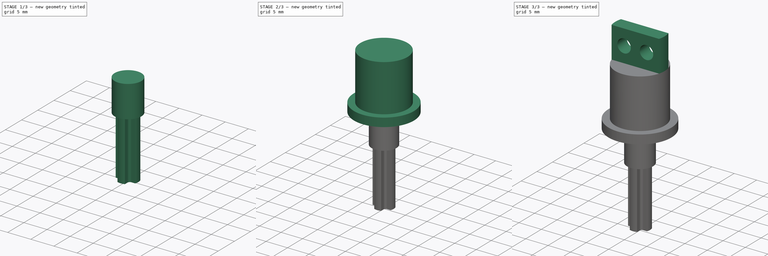
[diagram: build sequence overview — one tinted view per stage of 3, left to right]
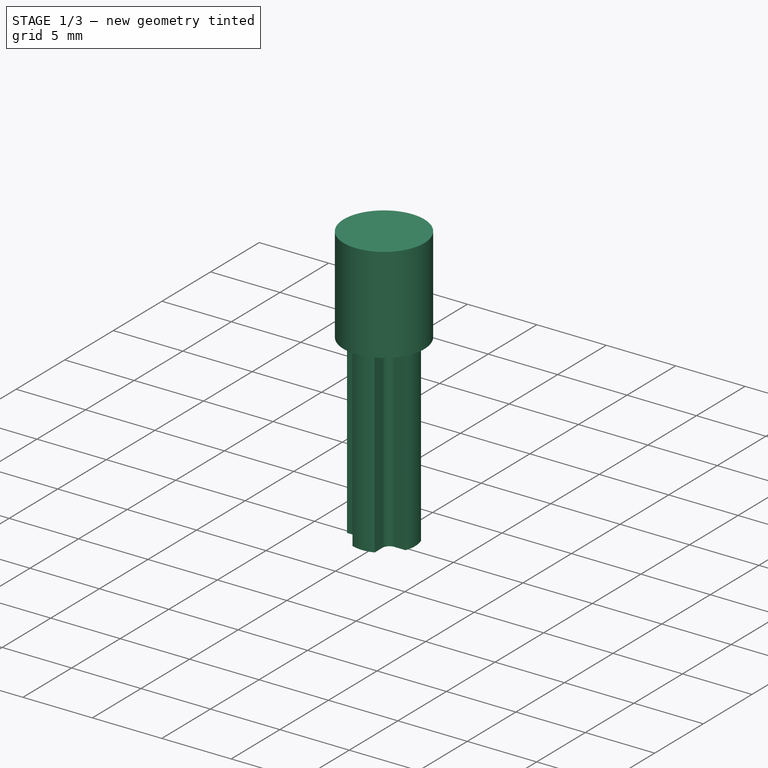
[diagram: stage 1 of 3 — iso view after this stage's code; geometry added in this stage tinted green]
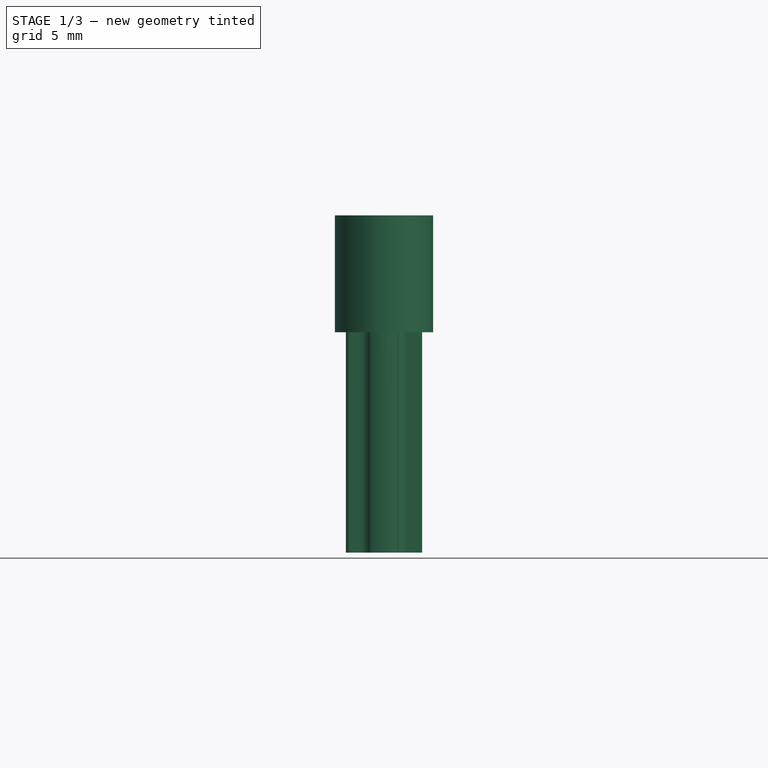
[diagram: stage 1 of 3 — front view after this stage's code; geometry added in this stage tinted green]
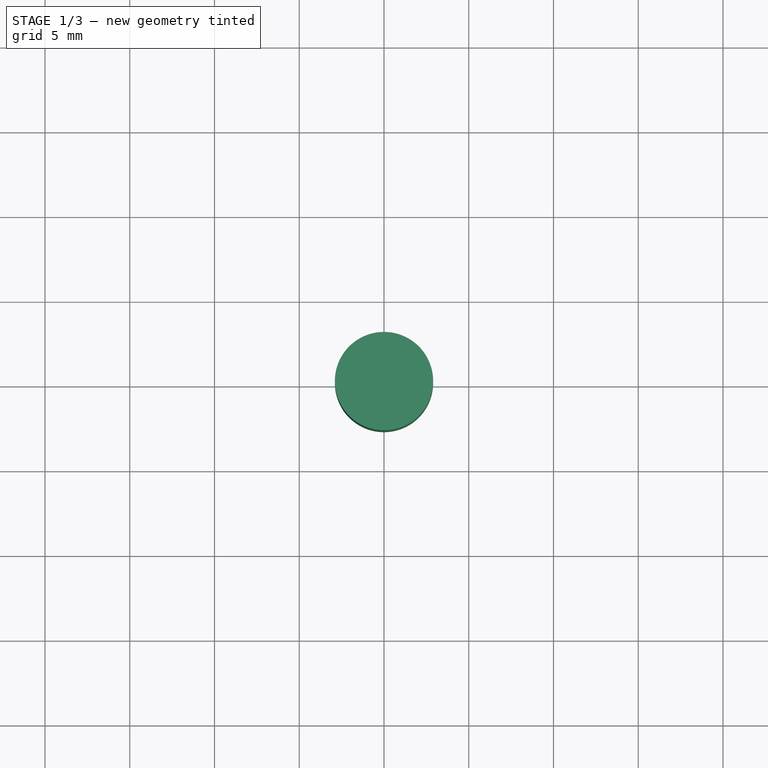
[diagram: stage 1 of 3 — top view after this stage's code; geometry added in this stage tinted green]
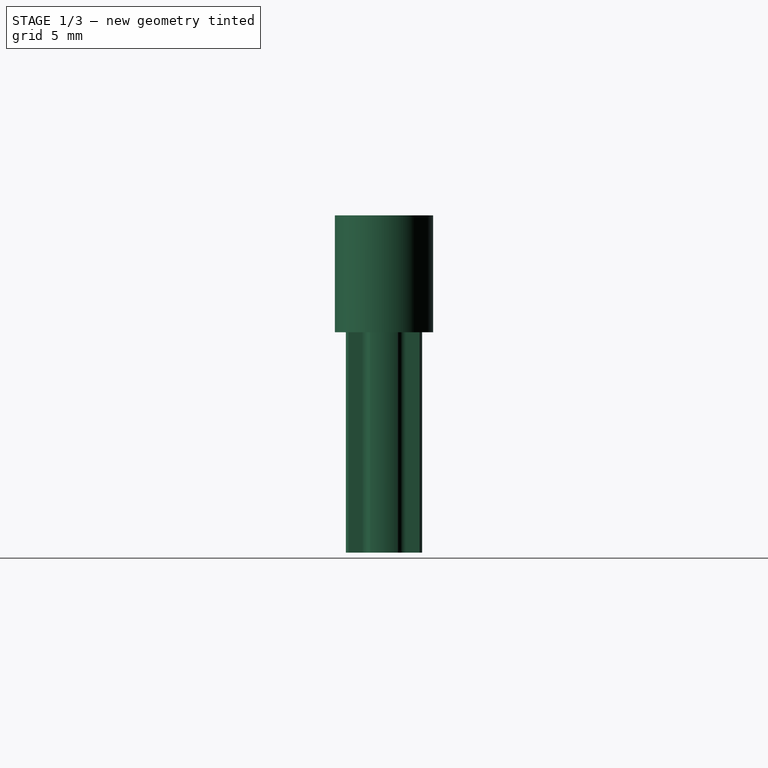
[diagram: stage 1 of 3 — right view after this stage's code; geometry added in this stage tinted green]
FCSTD DOCUMENT  (FreeCAD 1.0R39109 (Git))
Label: BackWheelAxle
License: All rights reserved
LicenseURL: https://en.wikipedia.org/wiki/All_rights_reserved
objects: Sketcher::SketchObject×6, PartDesign::Pad×5, PartDesign::Pocket×1, PartDesign::Body×1, App::Part×1
note: 31 computed .brp shape members not serialized (recipe doc carries the construction recipe); baked Part::Feature solids carry a one-line shape summary decoded from their .brp

FEATURE [Sketcher::SketchObject] Sketch
  ArcFitTolerance = 1e-06
  AttachmentSupport = -> [XY_Plane001]
  FullyConstrained = true
  MakeInternals = false
  MapMode = 5
  sketch-geometry (16):
    g0: ArcOfCircle CenterX=-1.3 CenterY=-1.3 CenterZ=0 NormalX=0 NormalY=0 NormalZ=1 AngleXU=0 Radius=0.5 StartAngle=0 EndAngle=1.5708
    g1: ArcOfCircle CenterX=1.3 CenterY=-1.3 CenterZ=0 NormalX=0 NormalY=0 NormalZ=1 AngleXU=0 Radius=0.5 StartAngle=1.5708 EndAngle=3.14159
    g2: ArcOfCircle CenterX=-1.3 CenterY=1.3 CenterZ=0 NormalX=0 NormalY=0 NormalZ=1 AngleXU=0 Radius=0.5 StartAngle=4.71239 EndAngle=6.28319
    g3: ArcOfCircle CenterX=1.3 CenterY=1.3 CenterZ=0 NormalX=0 NormalY=0 NormalZ=1 AngleXU=0 Radius=0.5 StartAngle=3.14159 EndAngle=4.71239
    g4: LineSegment StartX=-0.8 StartY=2.10297 StartZ=0 EndX=-0.8 EndY=1.3 EndZ=0
    g5: LineSegment StartX=-1.3 StartY=0.8 StartZ=0 EndX=-2.10297 EndY=0.8 EndZ=0
    g6: LineSegment StartX=-2.10297 StartY=-0.8 StartZ=0 EndX=-1.3 EndY=-0.8 EndZ=0
    g7: LineSegment StartX=-0.8 StartY=-1.3 StartZ=0 EndX=-0.8 EndY=-2.10297 EndZ=0
    g8: LineSegment StartX=0.8 StartY=-2.10297 StartZ=0 EndX=0.8 EndY=-1.3 EndZ=0
    g9: LineSegment StartX=1.3 StartY=-0.8 StartZ=0 EndX=2.10297 EndY=-0.8 EndZ=0
    g10: LineSegment StartX=2.10297 StartY=0.8 StartZ=0 EndX=1.3 EndY=0.8 EndZ=0
    g11: LineSegment StartX=0.8 StartY=1.3 StartZ=0 EndX=0.8 EndY=2.10297 EndZ=0
    g12: ArcOfCircle CenterX=0 CenterY=0 CenterZ=0 NormalX=0 NormalY=0 NormalZ=1 AngleXU=0 Radius=2.25 StartAngle=1.20729 EndAngle=1.9343
    g13: ArcOfCircle CenterX=0 CenterY=0 CenterZ=0 NormalX=0 NormalY=0 NormalZ=1 AngleXU=0 Radius=2.25 StartAngle=5.91968 EndAngle=6.64669
    g14: ArcOfCircle CenterX=0 CenterY=0 CenterZ=0 NormalX=0 NormalY=0 NormalZ=1 AngleXU=0 Radius=2.25 StartAngle=4.34888 EndAngle=5.0759
    g15: ArcOfCircle CenterX=0 CenterY=0 CenterZ=0 NormalX=0 NormalY=0 NormalZ=1 AngleXU=0 Radius=2.25 StartAngle=2.77808 EndAngle=3.5051
  constraints (44):
    c: Vertical(g4)
    c: Vertical(g11)
    c: Vertical(g7)
    c: Vertical(g8)
    c: Horizontal(g5)
    c: Horizontal(g10)
    c: Horizontal(g9)
    c: Horizontal(g6)
    c: Tangent(g5,g2) = 1.5708
    c: Tangent(g4,g2) = 1.5708
    c: Tangent(g11,g3) = 1.5708
    c: Tangent(g10,g3) = 1.5708
    c: Tangent(g6,g0) = 1.5708
    c: Tangent(g7,g0) = 1.5708
    c: Tangent(g8,g1) = 1.5708
    c: Tangent(g9,g1) = 1.5708
    c: Radius(g2) = 0.5
    c: Equal(g2,g3)
    c: Equal(g2,g1)
    c: Equal(g2,g0)
    c: Coincident(g12,g-1)
    c: Coincident(g12,g4)
    c: Coincident(g12,g11)
    c: Coincident(g13,g12)
    c: Coincident(g13,g10)
    c: Coincident(g13,g9)
    c: Coincident(g14,g12)
    c: Coincident(g14,g8)
    c: Coincident(g14,g7)
    c: Coincident(g15,g12)
    c: Coincident(g15,g6)
    c: Coincident(g15,g5)
    c: Diameter(g12) = 4.5
    c: Equal(g12,g13)
    c: Equal(g12,g14)
    c: Equal(g12,g15)
    c: Equal(g4,g11)
    c: Equal(g4,g8)
    c: Equal(g4,g7)
    c: Equal(g5,g10)
    c: Equal(g5,g6)
    c: Equal(g5,g9)
    c: DistanceY(g6,g5) = 1.6
    c: DistanceX(g4,g11) = 1.6
FEATURE [PartDesign::Pad] Pad
  Direction = (0,0,1)
  Length = 13
  Length2 = 10
  Profile = -> Sketch
  ReferenceAxis = -> Sketch [N_Axis]
  Refine = true
  Suppressed = false
  Type = 0
FEATURE [Sketcher::SketchObject] Sketch001
  ArcFitTolerance = 1e-06
  AttachmentSupport = -> [Pad]
  FullyConstrained = true
  MakeInternals = false
  MapMode = 5
  Placement = pos=(0,0,13) rot=(0,0,1;0rad)
  sketch-geometry (1):
    g0: Circle CenterX=0 CenterY=0 CenterZ=0 NormalX=0 NormalY=0 NormalZ=1 AngleXU=0 Radius=2.9
  constraints (2):
    c: Diameter(g0) = 5.8
    c: Coincident(g0,g-1)
FEATURE [PartDesign::Pad] Pad001
  BaseFeature = -> Pad
  Direction = (0,0,1)
  Length = 6.9
  Length2 = 10
  Profile = -> Sketch001
  ReferenceAxis = -> Sketch001 [N_Axis]
  Refine = true
  Suppressed = false
  Type = 0
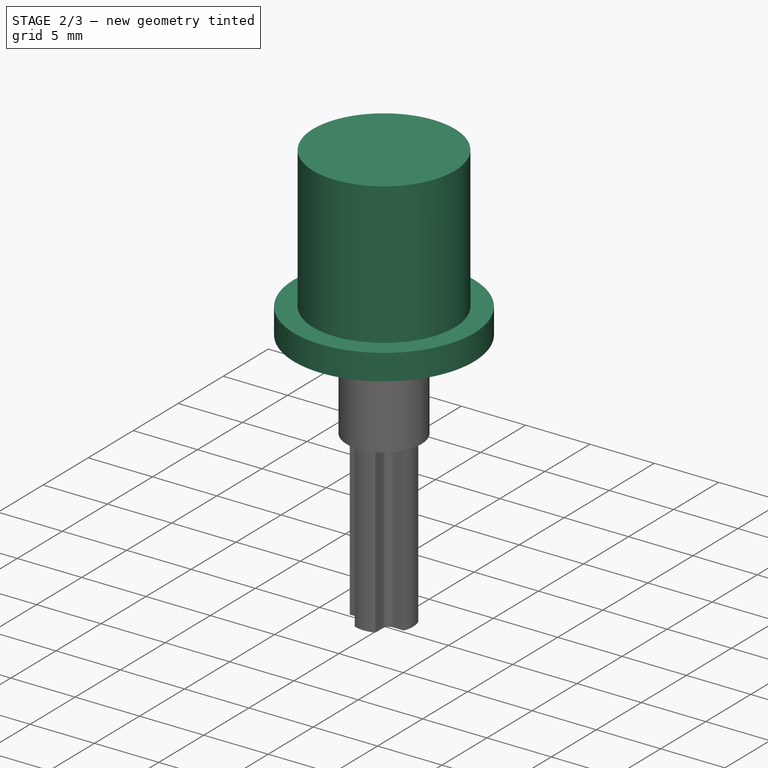
[diagram: stage 2 of 3 — iso view after this stage's code; geometry added in this stage tinted green]
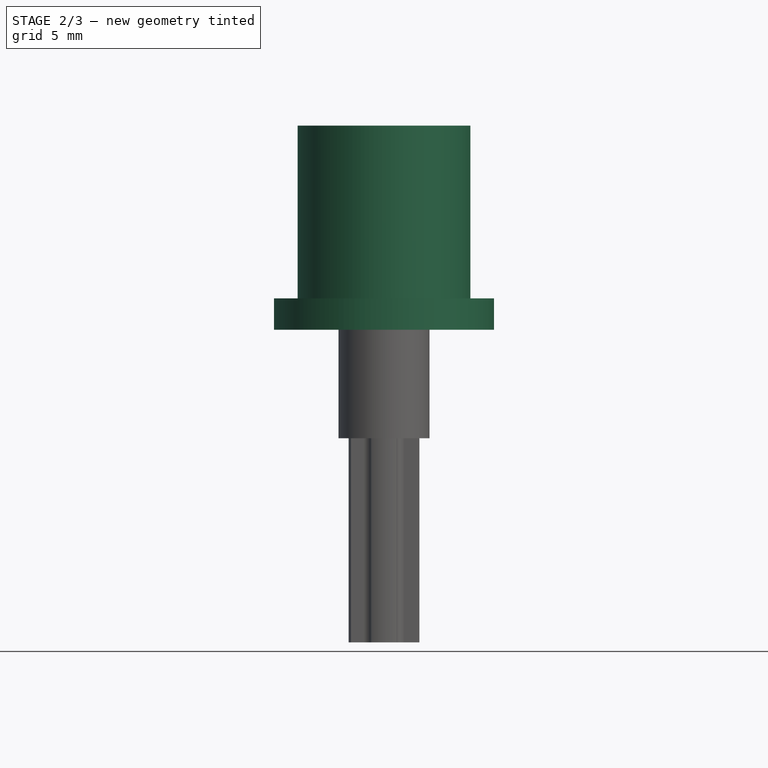
[diagram: stage 2 of 3 — front view after this stage's code; geometry added in this stage tinted green]
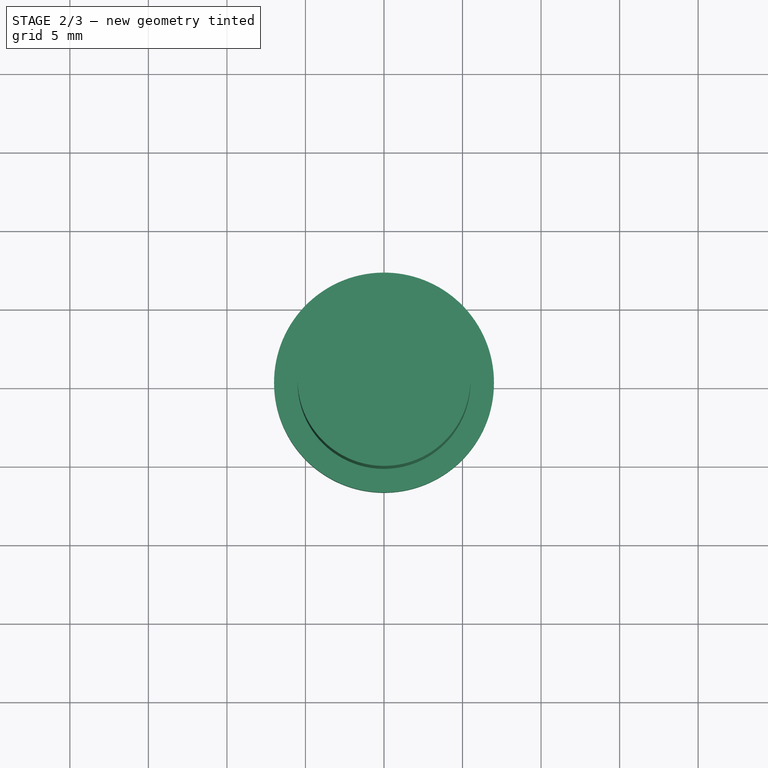
[diagram: stage 2 of 3 — top view after this stage's code; geometry added in this stage tinted green]
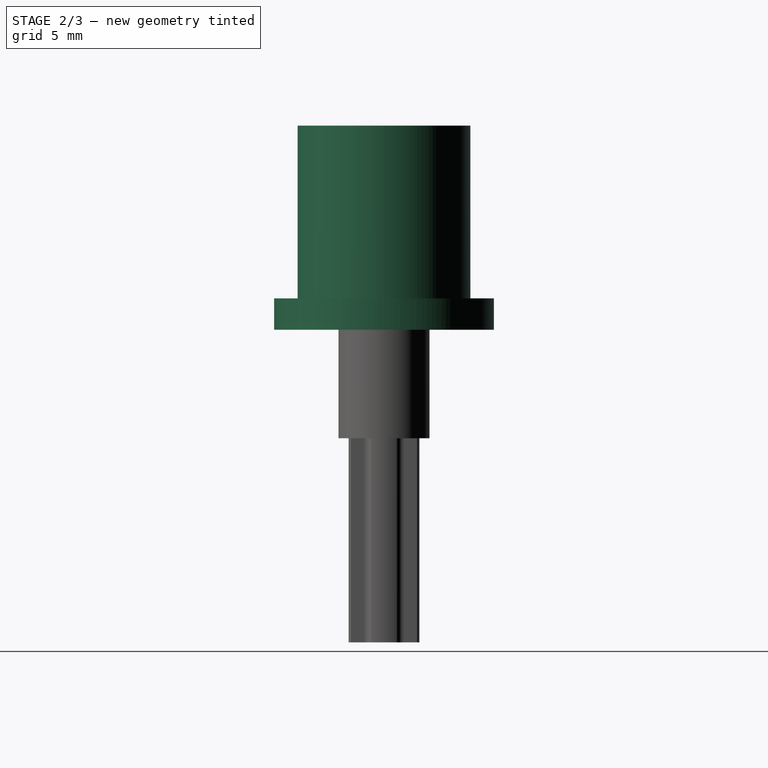
[diagram: stage 2 of 3 — right view after this stage's code; geometry added in this stage tinted green]
FEATURE [Sketcher::SketchObject] Sketch002
  ArcFitTolerance = 1e-06
  AttachmentSupport = -> [Pad001]
  FullyConstrained = true
  MakeInternals = false
  MapMode = 5
  Placement = pos=(0,0,19.9) rot=(0,0,1;0rad)
  sketch-geometry (1):
    g0: Circle CenterX=0 CenterY=0 CenterZ=0 NormalX=0 NormalY=0 NormalZ=1 AngleXU=0 Radius=7
  constraints (2):
    c: Diameter(g0) = 14
    c: Coincident(g0,g-1)
FEATURE [PartDesign::Pad] Pad002
  BaseFeature = -> Pad001
  Direction = (0,0,1)
  Length = 2
  Length2 = 10
  Profile = -> Sketch002
  ReferenceAxis = -> Sketch002 [N_Axis]
  Refine = true
  Suppressed = false
  Type = 0
FEATURE [Sketcher::SketchObject] Sketch003
  ArcFitTolerance = 1e-06
  AttachmentSupport = -> [Pad002]
  FullyConstrained = true
  MakeInternals = false
  MapMode = 5
  Placement = pos=(0,0,21.9) rot=(0,0,1;0rad)
  sketch-geometry (1):
    g0: Circle CenterX=0 CenterY=0 CenterZ=0 NormalX=0 NormalY=0 NormalZ=1 AngleXU=0 Radius=5.5
  constraints (2):
    c: Diameter(g0) = 11
    c: Coincident(g0,g-1)
FEATURE [PartDesign::Pad] Pad003
  BaseFeature = -> Pad002
  Direction = (0,0,1)
  Length = 11
  Length2 = 10
  Profile = -> Sketch003
  ReferenceAxis = -> Sketch003 [N_Axis]
  Refine = true
  Suppressed = false
  Type = 0
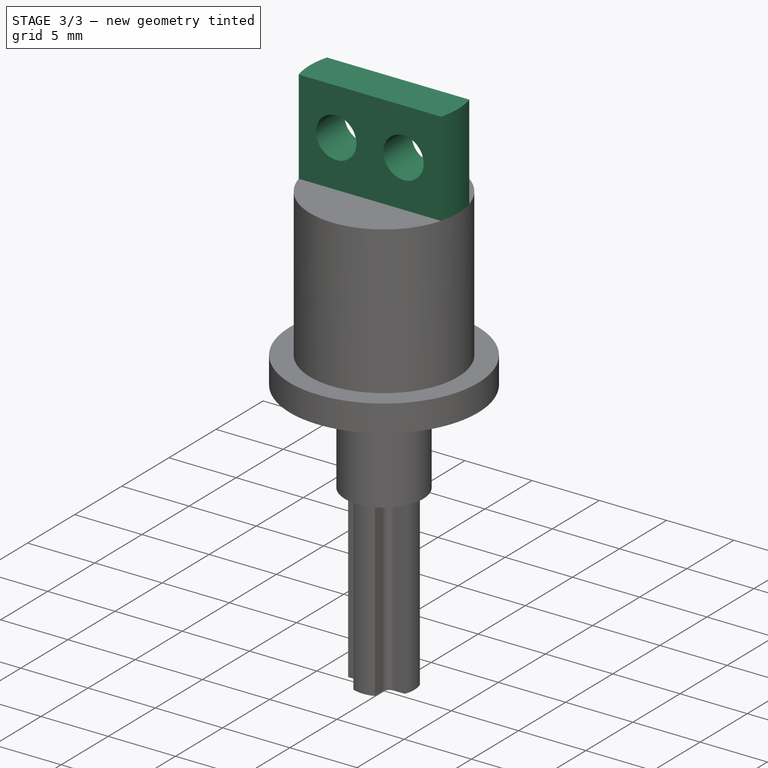
[diagram: stage 3 of 3 — iso view after this stage's code; geometry added in this stage tinted green]
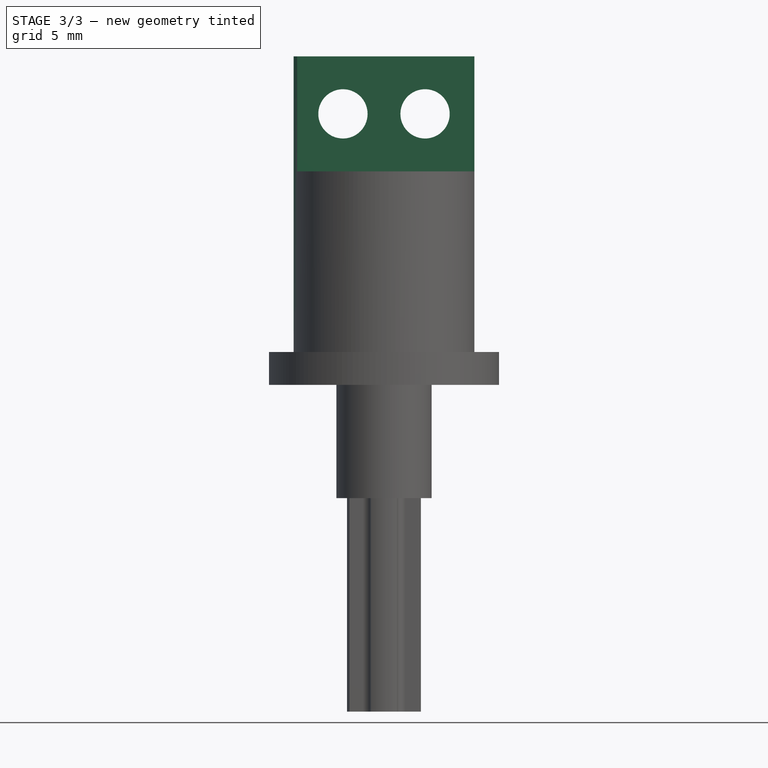
[diagram: stage 3 of 3 — front view after this stage's code; geometry added in this stage tinted green]
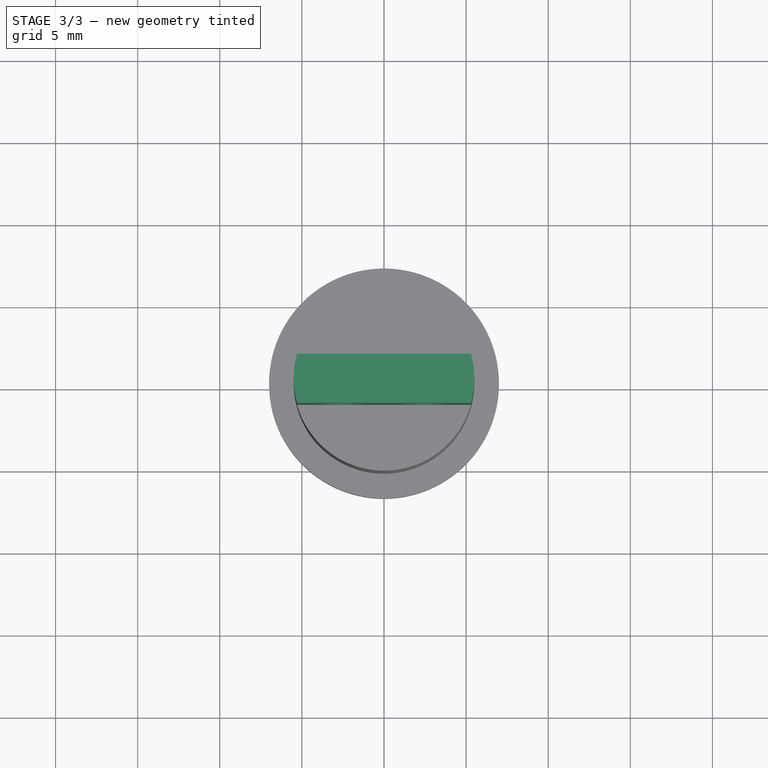
[diagram: stage 3 of 3 — top view after this stage's code; geometry added in this stage tinted green]
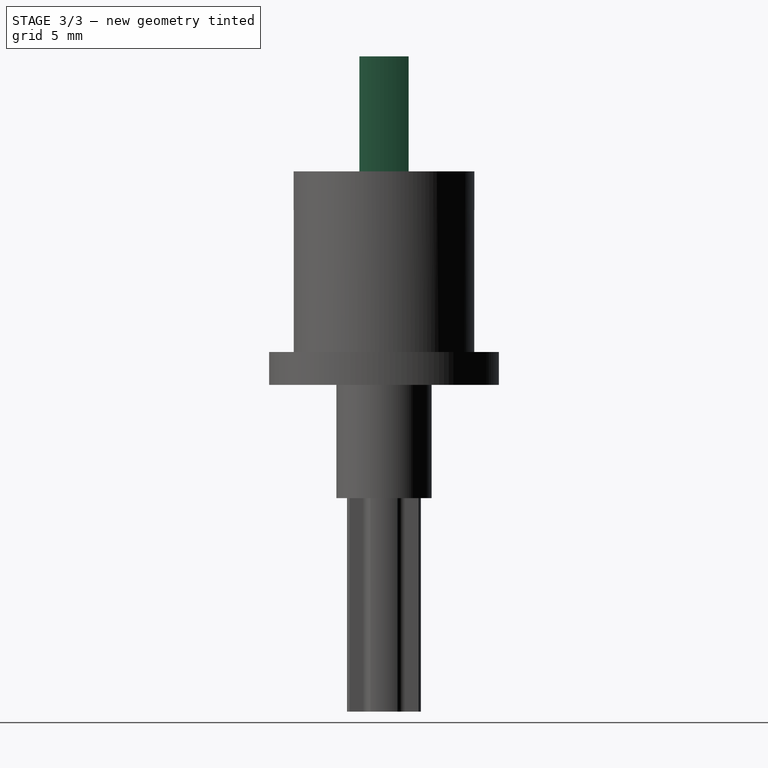
[diagram: stage 3 of 3 — right view after this stage's code; geometry added in this stage tinted green]
FEATURE [Sketcher::SketchObject] Sketch004
  ArcFitTolerance = 1e-06
  AttachmentSupport = -> [Pad003]
  ExternalGeometry = -> [Sketch003]
  FullyConstrained = true
  MakeInternals = false
  MapMode = 5
  Placement = pos=(0,0,32.9) rot=(0,0,1;0rad)
  sketch-geometry (4):
    g0: LineSegment StartX=-5.2915 StartY=-1.5 StartZ=0 EndX=5.2915 EndY=-1.5 EndZ=0
    g1: LineSegment StartX=-5.2915 StartY=1.5 StartZ=0 EndX=5.2915 EndY=1.5 EndZ=0
    g2: ArcOfCircle CenterX=-3e-16 CenterY=-4e-16 CenterZ=0 NormalX=0 NormalY=0 NormalZ=1 AngleXU=0 Radius=5.5 StartAngle=2.86537 EndAngle=3.41782
    g3: ArcOfCircle CenterX=-2.19999e-05 CenterY=8e-16 CenterZ=0 NormalX=0 NormalY=0 NormalZ=1 AngleXU=0 Radius=5.50002 StartAngle=6.00696 EndAngle=6.55941
  constraints (13):
    c: Horizontal(g1)
    c: Horizontal(g0)
    c: Distance(g0,g1) = 3
    c: PointOnObject(g0,g-3)
    c: PointOnObject(g0,g-3)
    c: PointOnObject(g1,g-3)
    c: PointOnObject(g1,g-3)
    c: Coincident(g2,g1)
    c: Coincident(g2,g0)
    c: Symmetric(g1,g0,g2)
    c: Coincident(g3,g0)
    c: Coincident(g3,g1)
    c: Tangent(g3,g-3)
FEATURE [PartDesign::Pad] Pad004
  BaseFeature = -> Pad003
  Direction = (0,0,1)
  Length = 7
  Length2 = 10
  Profile = -> Sketch004
  ReferenceAxis = -> Sketch004 [N_Axis]
  Refine = true
  Suppressed = false
  Type = 0
FEATURE [Sketcher::SketchObject] Sketch005
  ArcFitTolerance = 1e-06
  AttachmentSupport = -> [Pad004]
  ExternalGeometry = -> [Pad004]
  FullyConstrained = true
  MakeInternals = false
  MapMode = 5
  Placement = pos=(0,-1.5,0) rot=(1,0,0;1.5708rad)
  sketch-geometry (2):
    g0: Circle CenterX=2.5 CenterY=36.4 CenterZ=0 NormalX=0 NormalY=0 NormalZ=1 AngleXU=0 Radius=1.5
    g1: Circle CenterX=-2.5 CenterY=36.4 CenterZ=0 NormalX=0 NormalY=0 NormalZ=1 AngleXU=0 Radius=1.5
  constraints (5):
    c: Diameter(g0) = 3
    c: Equal(g0,g1)
    c: Symmetric(g0,g1,g-2)
    c: DistanceX(g1,g0) = 5
    c: Distance(g0,g-3) = 3.5
FEATURE [PartDesign::Pocket] Pocket
  BaseFeature = -> Pad004
  Direction = (0,1,-2e-16)
  Length = 0
  Length2 = 5
  Profile = -> Sketch005
  ReferenceAxis = -> Sketch005 [N_Axis]
  Refine = true
  Suppressed = false
  Type = 3
  UpToFace = -> Pad004 [Face4]
FEATURE [PartDesign::Body] Body  label="BackWheelAxleBody"
  AllowCompound = false
  Group = -> [Sketch,Pad,Sketch001,Pad001,Sketch002,Pad002,Sketch003,Pad003,Sketch004,Pad004,Sketch005,Pocket]
  Origin = -> Origin001
  Tip = -> Pocket
FEATURE [App::Part] Part  label="BackWheelAxlePart"
  Group = -> [Body]
  Origin = -> Origin
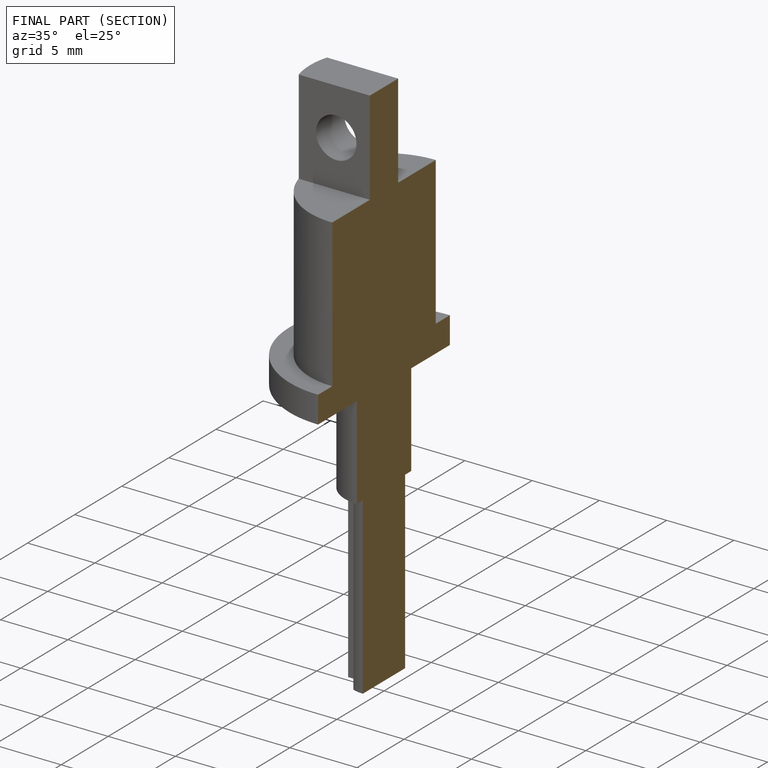
[diagram: finished part — half-section view (interior)]
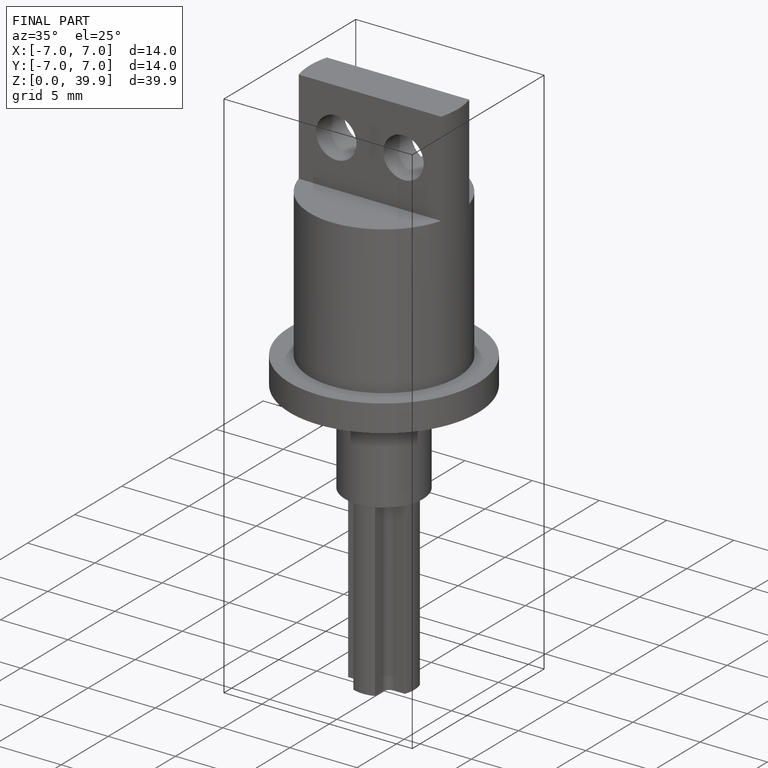
[diagram: finished part — iso view with bounding-box wireframe]
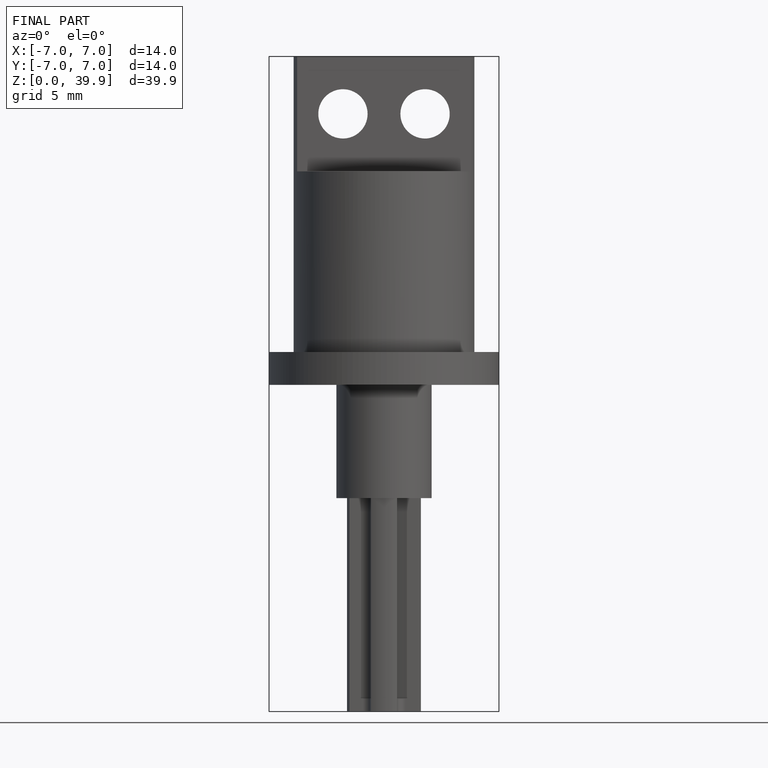
[diagram: finished part — front view with bounding-box wireframe]
